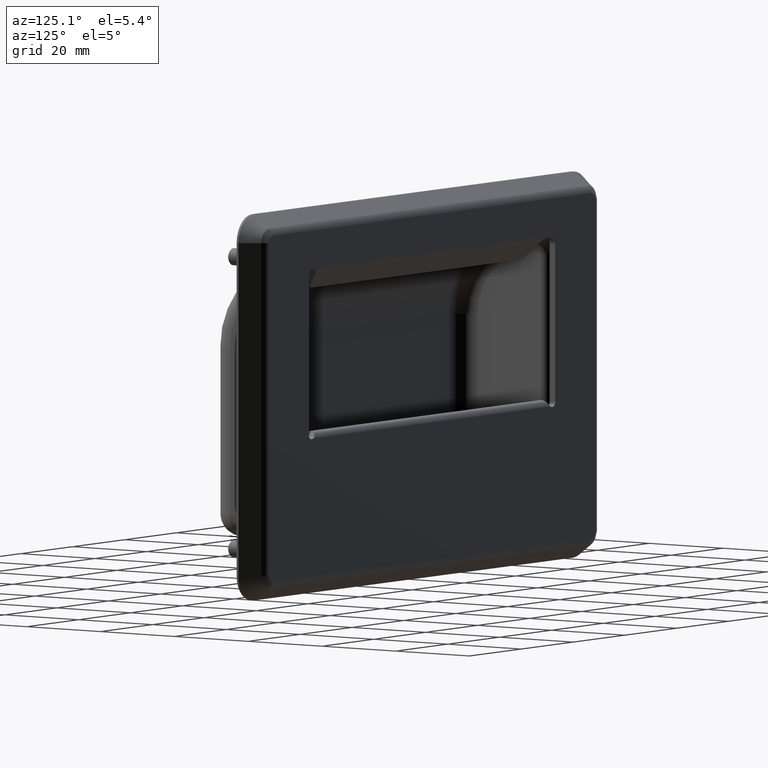
[diagram: clean part render]
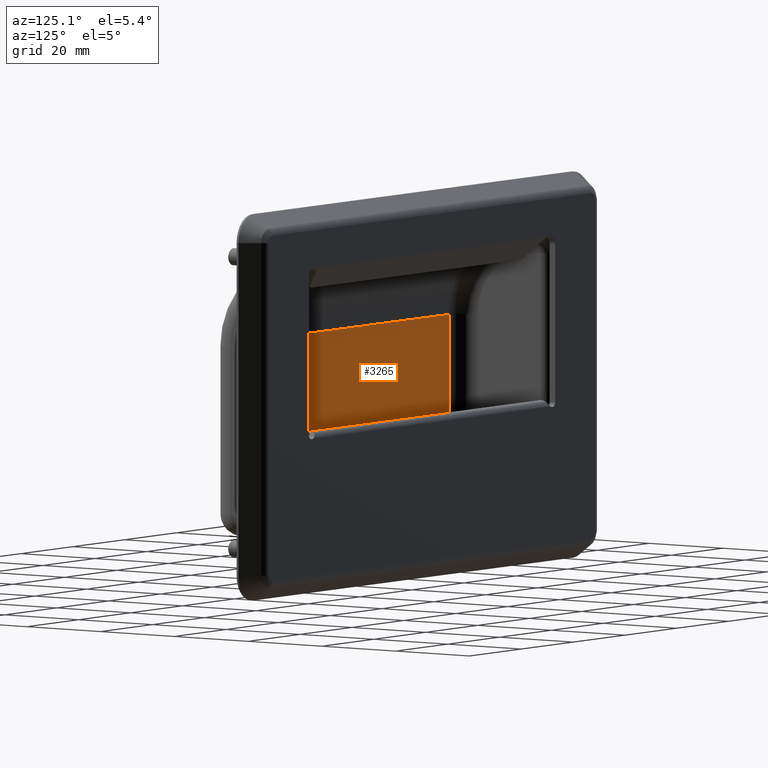
[diagram: same view with one face highlighted and labeled with its STEP entity id]
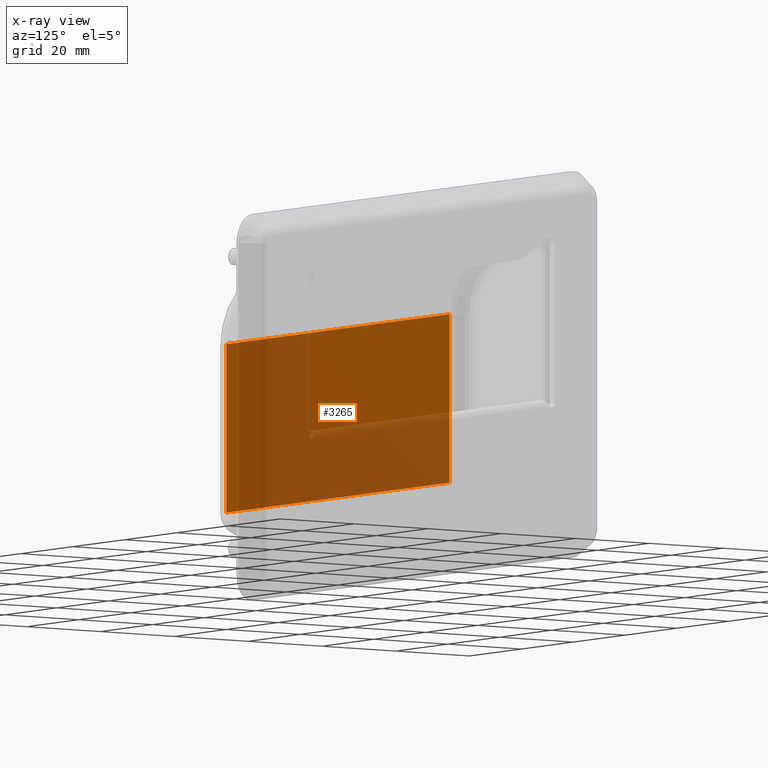
[diagram: x-ray of the same camera — body ghosted, the highlighted face saturated]
A machine part, auxiliary view. The second image highlights one B-rep face of the part: STEP entity #3265.
The next image is the same camera in x-ray: the body ghosted, the highlighted face saturated — about 59% of this face is hidden behind the body in this view.
In plain terms, the highlighted planar face has unit normal (0, -1, -0).
Its self-contained STEP definition (entity closure, byte-faithful):
#264=PLANE('',#3568);
#450=FACE_OUTER_BOUND('',#674,.T.);
#674=EDGE_LOOP('',(#2972,#2973,#2974,#2975));
#920=LINE('',#7255,#1164);
#922=LINE('',#7262,#1166);
#926=LINE('',#7278,#1170);
#928=LINE('',#7281,#1172);
#1164=VECTOR('',#4351,86.);
#1166=VECTOR('',#4359,37.5);
#1170=VECTOR('',#4381,37.5);
#1172=VECTOR('',#4385,86.);
#1627=VERTEX_POINT('',#7245);
#1628=VERTEX_POINT('',#7249);
#1631=VERTEX_POINT('',#7260);
#1634=VERTEX_POINT('',#7274);
#2076=EDGE_CURVE('',#1628,#1627,#920,.T.);
#2079=EDGE_CURVE('',#1631,#1628,#922,.T.);
#2088=EDGE_CURVE('',#1627,#1634,#926,.T.);
#2090=EDGE_CURVE('',#1631,#1634,#928,.T.);
#2972=ORIENTED_EDGE('',*,*,#2079,.F.);
#2973=ORIENTED_EDGE('',*,*,#2090,.T.);
#2974=ORIENTED_EDGE('',*,*,#2088,.F.);
#2975=ORIENTED_EDGE('',*,*,#2076,.F.);
#3265=ADVANCED_FACE('',(#450),#264,.F.);
#3568=AXIS2_PLACEMENT_3D('',#7284,#4390,#4391);
#4351=DIRECTION('',(1.,0.,0.));
#4359=DIRECTION('',(0.,1.05735526154777E-16,-1.));
#4381=DIRECTION('',(0.,-1.05735526154777E-16,1.));
#4385=DIRECTION('',(1.,0.,0.));
#4390=DIRECTION('center_axis',(0.,-1.,-1.05735526154777E-16));
#4391=DIRECTION('ref_axis',(0.,0.,-1.));
#7245=CARTESIAN_POINT('',(43.,-23.5,-26.));
#7249=CARTESIAN_POINT('',(-43.,-23.5,-26.));
#7255=CARTESIAN_POINT('',(0.,-23.5,-26.));
#7260=CARTESIAN_POINT('',(-43.,-23.5,11.5));
#7262=CARTESIAN_POINT('',(-43.,-23.5,5.75));
#7274=CARTESIAN_POINT('',(43.,-23.5,11.5));
#7278=CARTESIAN_POINT('',(43.,-23.5,5.75));
#7281=CARTESIAN_POINT('',(0.,-23.5,11.5));
#7284=CARTESIAN_POINT('Origin',(0.,-23.5,11.5));